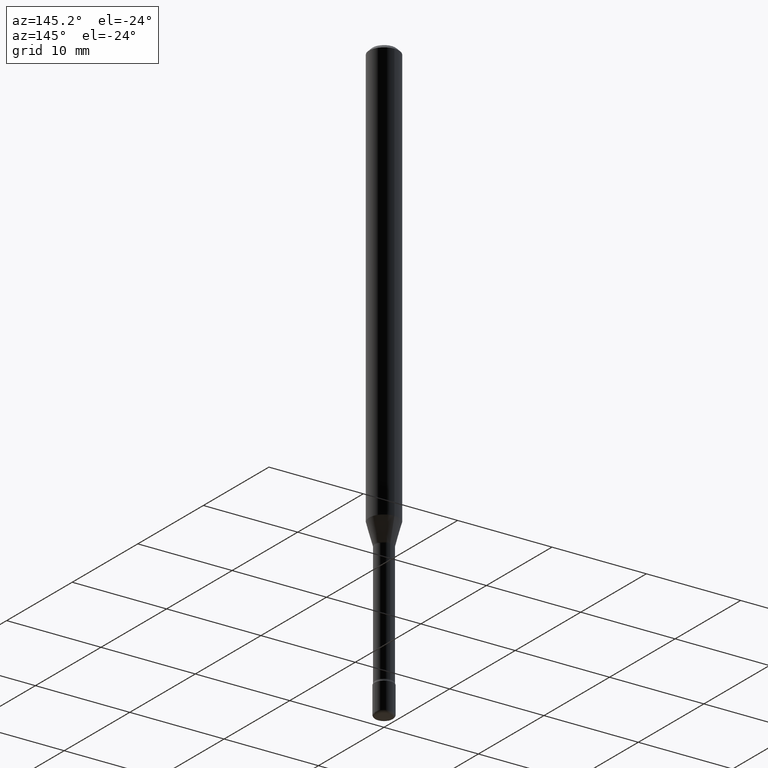
[diagram: clean part render]
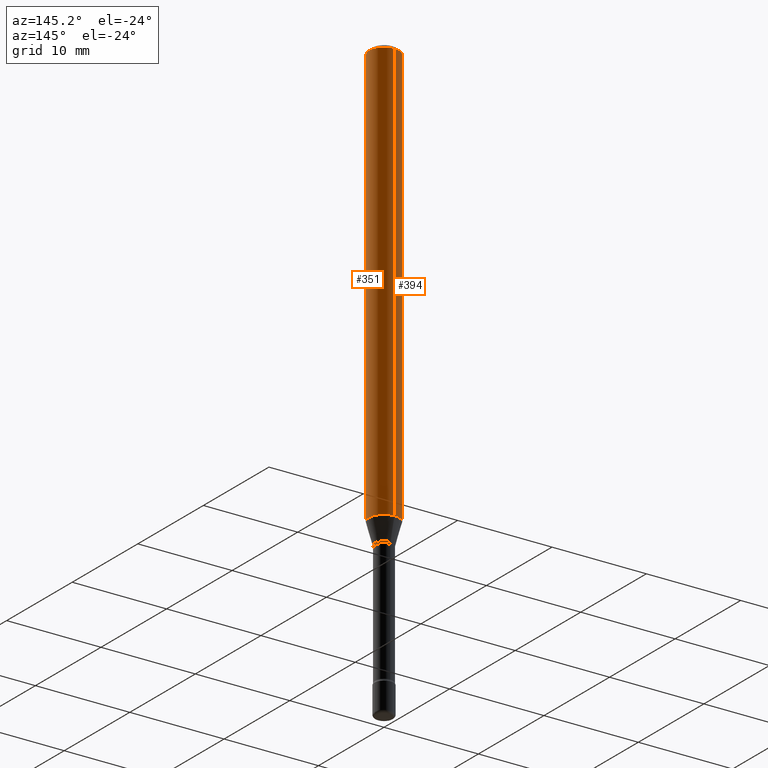
[diagram: same view with one multi-face feature highlighted, each face labeled with its STEP entity id]
A machine part, auxiliary view. The highlighted faces form ONE feature: a constant-radius fillet chain: 2 tangent blend faces with common blend radius 1.5875 mm. The faces share edges in the B-rep.
Their STEP definitions:
[1] entity #351 (Cylinder):
#14 = CARTESIAN_POINT ( 'NONE',  ( 4.440892098501060035E-16, 0.06249999999999995143, -0.01500000000000024578 ) ) ;
#39 = CIRCLE ( 'NONE', #356, 0.06250000000000000000 ) ;
#49 = VECTOR ( 'NONE', #200, 39.37007874015748143 ) ;
#59 = DIRECTION ( 'NONE',  ( -2.445315096420110130E-29, 3.491701459975279518E-15, 1.000000000000000000 ) ) ;
#94 = VERTEX_POINT ( 'NONE', #14 ) ;
#102 = CYLINDRICAL_SURFACE ( 'NONE', #248, 0.06250000000000000000 ) ;
#109 = LINE ( 'NONE', #196, #49 ) ;
#151 = DIRECTION ( 'NONE',  ( -2.445315096420110410E-29, 3.491701459975279518E-15, 1.000000000000000000 ) ) ;
#172 = EDGE_CURVE ( 'NONE', #293, #435, #408, .T. ) ;
#188 = DIRECTION ( 'NONE',  ( -6.982962677686265922E-15, -1.000000000000000000, 4.370956789862821150E-15 ) ) ;
#193 = ORIENTED_EDGE ( 'NONE', *, *, #172, .T. ) ;
#196 = CARTESIAN_POINT ( 'NONE',  ( 4.440892098500625669E-16, 0.06250000000000000000, 2.598420576427910934E-16 ) ) ;
#200 = DIRECTION ( 'NONE',  ( -2.445315096420110130E-29, 3.491701459975279518E-15, 1.000000000000000000 ) ) ;
#247 = CARTESIAN_POINT ( 'NONE',  ( 4.440892098501054119E-16, 0.06249999999999378969, -1.767071934891535356 ) ) ;
#248 = AXIS2_PLACEMENT_3D ( 'NONE', #541, #151, #281 ) ;
#281 = DIRECTION ( 'NONE',  ( -6.982962677686265922E-15, -1.000000000000000000, 3.491701459975279518E-15 ) ) ;
#293 = VERTEX_POINT ( 'NONE', #505 ) ;
#300 = VERTEX_POINT ( 'NONE', #330 ) ;
#305 = AXIS2_PLACEMENT_3D ( 'NONE', #498, #413, #188 ) ;
#325 = VECTOR ( 'NONE', #59, 39.37007874015748143 ) ;
#330 = CARTESIAN_POINT ( 'NONE',  ( -4.364351673553912750E-16, -0.06250000000000005551, -0.01499999999999981036 ) ) ;
#351 = ADVANCED_FACE ( 'NONE', ( #424 ), #102, .T. ) ;
#356 = AXIS2_PLACEMENT_3D ( 'NONE', #518, #387, #563 ) ;
#361 = EDGE_CURVE ( 'NONE', #293, #300, #460, .T. ) ;
#374 = EDGE_LOOP ( 'NONE', ( #193, #468, #522, #519 ) ) ;
#387 = DIRECTION ( 'NONE',  ( -2.445315096420110410E-29, 3.491701459975279518E-15, 1.000000000000000000 ) ) ;
#408 = CIRCLE ( 'NONE', #305, 0.06250000000000000000 ) ;
#413 = DIRECTION ( 'NONE',  ( -2.445315096420110410E-29, 3.491701459975279518E-15, 1.000000000000000000 ) ) ;
#424 = FACE_OUTER_BOUND ( 'NONE', #374, .T. ) ;
#435 = VERTEX_POINT ( 'NONE', #247 ) ;
#453 = CARTESIAN_POINT ( 'NONE',  ( -4.364351673553916201E-16, -0.06250000000000000000, 6.963047401397009838E-16 ) ) ;
#460 = LINE ( 'NONE', #453, #325 ) ;
#468 = ORIENTED_EDGE ( 'NONE', *, *, #509, .T. ) ;
#471 = EDGE_CURVE ( 'NONE', #300, #94, #39, .T. ) ;
#498 = CARTESIAN_POINT ( 'NONE',  ( 4.321047678850565270E-29, -6.170087654942115428E-15, -1.767071934891535134 ) ) ;
#505 = CARTESIAN_POINT ( 'NONE',  ( -4.364351673553487258E-16, -0.06250000000000620337, -1.767071934891534912 ) ) ;
#509 = EDGE_CURVE ( 'NONE', #435, #94, #109, .T. ) ;
#518 = CARTESIAN_POINT ( 'NONE',  ( 3.667972644630171939E-31, -5.237552189962929655E-17, -0.01500000000000002720 ) ) ;
#519 = ORIENTED_EDGE ( 'NONE', *, *, #361, .F. ) ;
#522 = ORIENTED_EDGE ( 'NONE', *, *, #471, .F. ) ;
#541 = CARTESIAN_POINT ( 'NONE',  ( -1.169113584055446105E-44, 1.669184350826100908E-30, 4.780733988912460139E-16 ) ) ;
#563 = DIRECTION ( 'NONE',  ( -6.982962677686265922E-15, -1.000000000000000000, 3.483106191921935554E-15 ) ) ;
[2] entity #394 (Cylinder):
#14 = CARTESIAN_POINT ( 'NONE',  ( 4.440892098501060035E-16, 0.06249999999999995143, -0.01500000000000024578 ) ) ;
#29 = ORIENTED_EDGE ( 'NONE', *, *, #262, .T. ) ;
#34 = CARTESIAN_POINT ( 'NONE',  ( -1.169113584055446105E-44, 1.669184350826100908E-30, 4.780733988912460139E-16 ) ) ;
#37 = DIRECTION ( 'NONE',  ( -2.445315096420110410E-29, 3.491701459975279518E-15, 1.000000000000000000 ) ) ;
#47 = AXIS2_PLACEMENT_3D ( 'NONE', #517, #338, #205 ) ;
#49 = VECTOR ( 'NONE', #200, 39.37007874015748143 ) ;
#59 = DIRECTION ( 'NONE',  ( -2.445315096420110130E-29, 3.491701459975279518E-15, 1.000000000000000000 ) ) ;
#94 = VERTEX_POINT ( 'NONE', #14 ) ;
#109 = LINE ( 'NONE', #196, #49 ) ;
#170 = AXIS2_PLACEMENT_3D ( 'NONE', #544, #186, #189 ) ;
#186 = DIRECTION ( 'NONE',  ( -2.445315096420110410E-29, 3.491701459975279518E-15, 1.000000000000000000 ) ) ;
#189 = DIRECTION ( 'NONE',  ( -6.982962677686265922E-15, -1.000000000000000000, 4.370956789862821150E-15 ) ) ;
#196 = CARTESIAN_POINT ( 'NONE',  ( 4.440892098500625669E-16, 0.06250000000000000000, 2.598420576427910934E-16 ) ) ;
#200 = DIRECTION ( 'NONE',  ( -2.445315096420110130E-29, 3.491701459975279518E-15, 1.000000000000000000 ) ) ;
#205 = DIRECTION ( 'NONE',  ( -6.982962677686265922E-15, -1.000000000000000000, 3.483106191921935554E-15 ) ) ;
#213 = CIRCLE ( 'NONE', #47, 0.06250000000000000000 ) ;
#227 = AXIS2_PLACEMENT_3D ( 'NONE', #34, #37, #473 ) ;
#247 = CARTESIAN_POINT ( 'NONE',  ( 4.440892098501054119E-16, 0.06249999999999378969, -1.767071934891535356 ) ) ;
#251 = ORIENTED_EDGE ( 'NONE', *, *, #390, .F. ) ;
#262 = EDGE_CURVE ( 'NONE', #435, #293, #388, .T. ) ;
#293 = VERTEX_POINT ( 'NONE', #505 ) ;
#300 = VERTEX_POINT ( 'NONE', #330 ) ;
#325 = VECTOR ( 'NONE', #59, 39.37007874015748143 ) ;
#330 = CARTESIAN_POINT ( 'NONE',  ( -4.364351673553912750E-16, -0.06250000000000005551, -0.01499999999999981036 ) ) ;
#338 = DIRECTION ( 'NONE',  ( -2.445315096420110410E-29, 3.491701459975279518E-15, 1.000000000000000000 ) ) ;
#357 = ORIENTED_EDGE ( 'NONE', *, *, #509, .F. ) ;
#361 = EDGE_CURVE ( 'NONE', #293, #300, #460, .T. ) ;
#388 = CIRCLE ( 'NONE', #170, 0.06250000000000000000 ) ;
#390 = EDGE_CURVE ( 'NONE', #94, #300, #213, .T. ) ;
#394 = ADVANCED_FACE ( 'NONE', ( #514 ), #470, .T. ) ;
#435 = VERTEX_POINT ( 'NONE', #247 ) ;
#453 = CARTESIAN_POINT ( 'NONE',  ( -4.364351673553916201E-16, -0.06250000000000000000, 6.963047401397009838E-16 ) ) ;
#460 = LINE ( 'NONE', #453, #325 ) ;
#470 = CYLINDRICAL_SURFACE ( 'NONE', #227, 0.06250000000000000000 ) ;
#472 = ORIENTED_EDGE ( 'NONE', *, *, #361, .T. ) ;
#473 = DIRECTION ( 'NONE',  ( -6.982962677686265922E-15, -1.000000000000000000, 3.491701459975279518E-15 ) ) ;
#505 = CARTESIAN_POINT ( 'NONE',  ( -4.364351673553487258E-16, -0.06250000000000620337, -1.767071934891534912 ) ) ;
#509 = EDGE_CURVE ( 'NONE', #435, #94, #109, .T. ) ;
#514 = FACE_OUTER_BOUND ( 'NONE', #548, .T. ) ;
#517 = CARTESIAN_POINT ( 'NONE',  ( 3.667972644630171939E-31, -5.237552189962929655E-17, -0.01500000000000002720 ) ) ;
#544 = CARTESIAN_POINT ( 'NONE',  ( 4.321047678850565270E-29, -6.170087654942115428E-15, -1.767071934891535134 ) ) ;
#548 = EDGE_LOOP ( 'NONE', ( #357, #29, #472, #251 ) ) ;